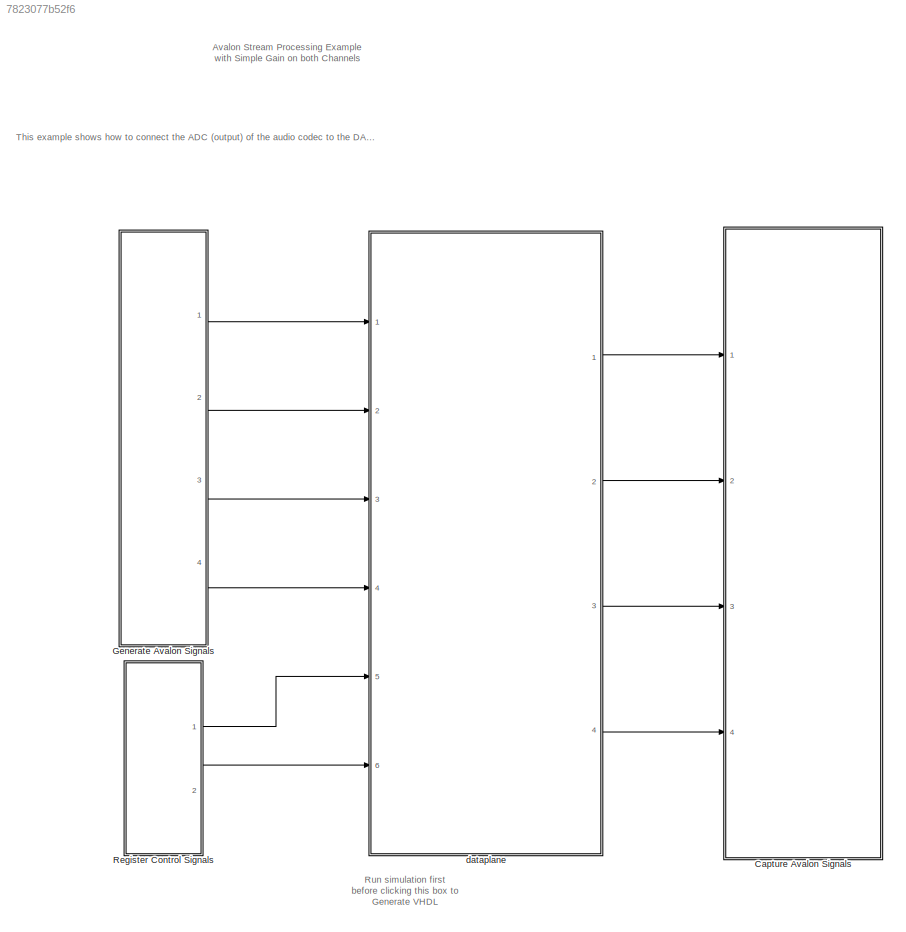
MODEL slx_7823077b52f6
KIND model
CONFIG AbsTol = auto
CONFIG EnableMultiTasking = off
CONFIG FixedStep = auto
CONFIG InitFcn = initCallback
CONFIG MaxStep = auto
CONFIG MinStep = auto
CONFIG RelTol = 1e-3
CONFIG SampleTimeConstraint = Unconstrained
CONFIG SolverName = FixedStepDiscrete
CONFIG StartTime = 0.0
CONFIG StopFcn = stopCallback
CONFIG StopTime = stopTime
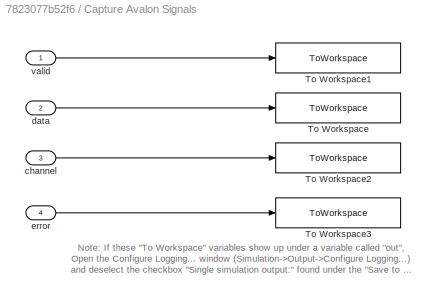
BLOCK [SubSystem] Capture Avalon Signals
  Ports = [4]
  RequestExecContextInheritance = off
BLOCK [ToWorkspace] Capture Avalon Signals/To Workspace
  FixptAsFi = on
  MaxDataPoints = inf
  Ports = [1]
  SampleTime = -1
  SaveFormat = Timeseries
  VariableName = Avalon_Sink_Data
BLOCK [ToWorkspace] Capture Avalon Signals/To Workspace1
  FixptAsFi = on
  MaxDataPoints = inf
  Ports = [1]
  SampleTime = -1
  SaveFormat = Timeseries
  VariableName = Avalon_Sink_Valid
BLOCK [ToWorkspace] Capture Avalon Signals/To Workspace2
  FixptAsFi = on
  MaxDataPoints = inf
  Ports = [1]
  SampleTime = -1
  SaveFormat = Timeseries
  VariableName = Avalon_Sink_Channel
BLOCK [ToWorkspace] Capture Avalon Signals/To Workspace3
  FixptAsFi = on
  MaxDataPoints = inf
  Ports = [1]
  SampleTime = -1
  SaveFormat = Timeseries
  VariableName = Avalon_Sink_Error
BLOCK [Inport] Capture Avalon Signals/channel
  Port = 3
BLOCK [Inport] Capture Avalon Signals/data
  Port = 2
BLOCK [Inport] Capture Avalon Signals/error
  Port = 4
BLOCK [Inport] Capture Avalon Signals/valid
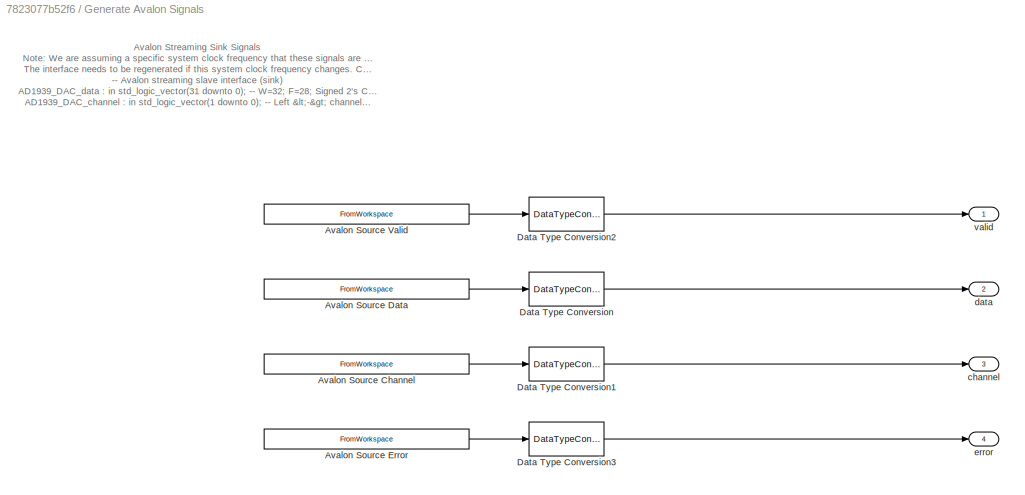
BLOCK [SubSystem] Generate Avalon Signals
  Ports = [0, 4]
  RequestExecContextInheritance = off
BLOCK [FromWorkspace] Generate Avalon Signals/Avalon Source Channel
  OutDataTypeStr = double
  SampleTime = mp.Ts_sim
  VariableName = mp.Avalon_Source_Channel
BLOCK [FromWorkspace] Generate Avalon Signals/Avalon Source Data 
  OutDataTypeStr = double
  SampleTime = mp.Ts_sim
  VariableName = mp.Avalon_Source_Data
BLOCK [FromWorkspace] Generate Avalon Signals/Avalon Source Error
  OutDataTypeStr = double
  SampleTime = mp.Ts_sim
  VariableName = mp.Avalon_Source_Error
BLOCK [FromWorkspace] Generate Avalon Signals/Avalon Source Valid
  OutDataTypeStr = double
  SampleTime = mp.Ts_sim
  VariableName = mp.Avalon_Source_Valid
BLOCK [DataTypeConversion] Generate Avalon Signals/Data Type Conversion
  OutDataTypeStr = fixdt(1,mp.W_bits,mp.F_bits)
  RndMeth = Floor
  SaturateOnIntegerOverflow = off
BLOCK [DataTypeConversion] Generate Avalon Signals/Data Type Conversion1
  OutDataTypeStr = fixdt(0,1,0)
  RndMeth = Floor
  SaturateOnIntegerOverflow = off
BLOCK [DataTypeConversion] Generate Avalon Signals/Data Type Conversion2
  OutDataTypeStr = boolean
  RndMeth = Floor
  SaturateOnIntegerOverflow = off
BLOCK [DataTypeConversion] Generate Avalon Signals/Data Type Conversion3
  OutDataTypeStr = fixdt(0,2,0)
  RndMeth = Floor
  SaturateOnIntegerOverflow = off
BLOCK [Outport] Generate Avalon Signals/channel
  Port = 3
  VectorParamsAs1DForOutWhenUnconnected = off
BLOCK [Outport] Generate Avalon Signals/data
  Port = 2
  VectorParamsAs1DForOutWhenUnconnected = off
BLOCK [Outport] Generate Avalon Signals/error
  Port = 4
  VectorParamsAs1DForOutWhenUnconnected = off
BLOCK [Outport] Generate Avalon Signals/valid
  VectorParamsAs1DForOutWhenUnconnected = off
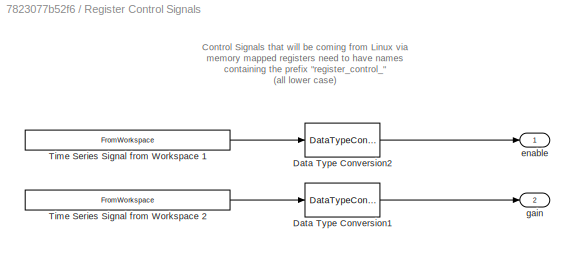
BLOCK [SubSystem] Register Control Signals
  Ports = [0, 2]
  RequestExecContextInheritance = off
BLOCK [DataTypeConversion] Register Control Signals/Data Type Conversion1
  OutDataTypeStr = mp.register{2}.dataType
  RndMeth = Floor
  SaturateOnIntegerOverflow = off
BLOCK [DataTypeConversion] Register Control Signals/Data Type Conversion2
  OutDataTypeStr = mp.register{1}.dataType
  RndMeth = Floor
  SaturateOnIntegerOverflow = off
BLOCK [FromWorkspace] Register Control Signals/Time Series Signal from Workspace 1
  OutDataTypeStr = double
  SampleTime = mp.Ts_sim
  VariableName = mp.register{1}.timeseries
BLOCK [FromWorkspace] Register Control Signals/Time Series Signal from Workspace 2
  OutDataTypeStr = double
  SampleTime = mp.Ts_sim
  VariableName = mp.register{2}.timeseries
BLOCK [Outport] Register Control Signals/enable
  VectorParamsAs1DForOutWhenUnconnected = off
BLOCK [Outport] Register Control Signals/gain
  Port = 2
  VectorParamsAs1DForOutWhenUnconnected = off
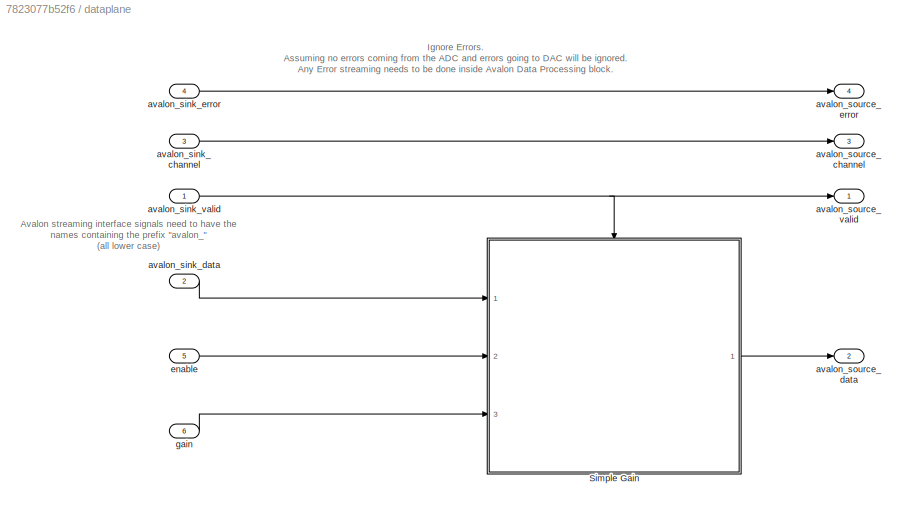
BLOCK [SubSystem] dataplane
  Ports = [6, 4]
  RequestExecContextInheritance = off
  TreatAsAtomicUnit = on
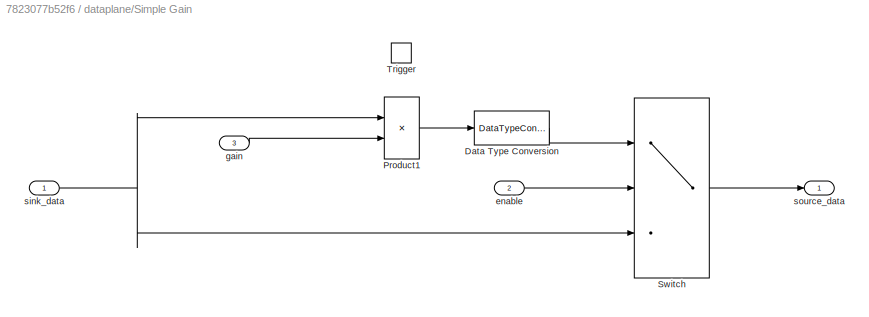
BLOCK [SubSystem] dataplane/Simple Gain
  Ports = [3, 1, 0, 1]
  RequestExecContextInheritance = off
  TreatAsAtomicUnit = on
BLOCK [DataTypeConversion] dataplane/Simple Gain/Data Type Conversion
  OutDataTypeStr = fixdt(1,24,23)
  RndMeth = Floor
  SaturateOnIntegerOverflow = off
BLOCK [Product] dataplane/Simple Gain/Product1
  Ports = [2, 1]
BLOCK [Switch] dataplane/Simple Gain/Switch
  Criteria = u2 ~= 0
  InputSameDT = off
  SaturateOnIntegerOverflow = off
BLOCK [TriggerPort] dataplane/Simple Gain/Trigger
  PortDimensions = 1
  Ports = []
  StatesWhenEnabling = held
  VariantControl = Variant
BLOCK [Inport] dataplane/Simple Gain/enable
  Port = 2
BLOCK [Inport] dataplane/Simple Gain/gain
  Port = 3
BLOCK [Inport] dataplane/Simple Gain/sink_data
BLOCK [Outport] dataplane/Simple Gain/source_data
  InitialOutput = 0
  VectorParamsAs1DForOutWhenUnconnected = off
BLOCK [Inport] dataplane/avalon_sink_channel
  Port = 3
BLOCK [Inport] dataplane/avalon_sink_data
  Port = 2
BLOCK [Inport] dataplane/avalon_sink_error
  Port = 4
BLOCK [Inport] dataplane/avalon_sink_valid
BLOCK [Outport] dataplane/avalon_source_channel
  Port = 3
  VectorParamsAs1DForOutWhenUnconnected = off
BLOCK [Outport] dataplane/avalon_source_data
  Port = 2
  VectorParamsAs1DForOutWhenUnconnected = off
BLOCK [Outport] dataplane/avalon_source_error
  Port = 4
  VectorParamsAs1DForOutWhenUnconnected = off
BLOCK [Outport] dataplane/avalon_source_valid
  VectorParamsAs1DForOutWhenUnconnected = off
BLOCK [Inport] dataplane/enable
  Port = 5
BLOCK [Inport] dataplane/gain
  Port = 6
ANNOTATION (root): Avalon Stream Processing Example with Simple Gain on both Channels
ANNOTATION (root): Run simulation first before clicking this box to Generate VHDL
ANNOTATION (root): This example shows how to connect the ADC (output) of the audio codec to the DAC (input) of the audio codec (AD1939). Audio data is just passed through with a single gain applied to the left and right channels. Data is streamed in the data plane using the Avalon Streaming interface that uses the data-channel-valid protocol.
ANNOTATION Capture Avalon Signals: Note: If these "To Workspace" variables show up under a variable called "out", Open the Configure Logging... window (Simulation->Output->Configure Logging...) and deselect the checkbox "Single simulation output:" found under the "Save to workspace or file" section.
ANNOTATION Generate Avalon Signals: Avalon Streaming Sink Signals Note: We are assuming a specific system clock frequency that these signals are being clock in at. The interface needs to be regenerated if this system clock frequency changes. Change system clock frequency in InitFcn callback in Model Explorer. -- Avalon streaming slave interface (sink) AD1939_DAC_data : in std_logic_vector(31 downto 0); -- W=32; F=28; Signed 2's Comp...<+545ch>
ANNOTATION Register Control Signals: Control Signals that will be coming from Linux via memory mapped registers need to have names containing the prefix "register_control_" (all lower case)
ANNOTATION dataplane: Avalon streaming interface signals need to have the names containing the prefix "avalon_" (all lower case)
ANNOTATION dataplane: Ignore Errors. Assuming no errors coming from the ADC and errors going to DAC will be ignored. Any Error streaming needs to be done inside Avalon Data Processing block.
LINE Capture Avalon Signals/channel:1 -> Capture Avalon Signals/To Workspace2:1
LINE Capture Avalon Signals/data:1 -> Capture Avalon Signals/To Workspace:1
LINE Capture Avalon Signals/error:1 -> Capture Avalon Signals/To Workspace3:1
LINE Capture Avalon Signals/valid:1 -> Capture Avalon Signals/To Workspace1:1
LINE Generate Avalon Signals/Avalon Source Channel:1 -> Generate Avalon Signals/Data Type Conversion1:1
LINE Generate Avalon Signals/Avalon Source Data :1 -> Generate Avalon Signals/Data Type Conversion:1
LINE Generate Avalon Signals/Avalon Source Error:1 -> Generate Avalon Signals/Data Type Conversion3:1
LINE Generate Avalon Signals/Avalon Source Valid:1 -> Generate Avalon Signals/Data Type Conversion2:1
LINE Generate Avalon Signals/Data Type Conversion1:1 -> Generate Avalon Signals/channel:1
LINE Generate Avalon Signals/Data Type Conversion2:1 -> Generate Avalon Signals/valid:1
LINE Generate Avalon Signals/Data Type Conversion3:1 -> Generate Avalon Signals/error:1
LINE Generate Avalon Signals/Data Type Conversion:1 -> Generate Avalon Signals/data:1
LINE Generate Avalon Signals:1 -> dataplane:1
LINE Generate Avalon Signals:2 -> dataplane:2
LINE Generate Avalon Signals:3 -> dataplane:3
LINE Generate Avalon Signals:4 -> dataplane:4
LINE Register Control Signals/Data Type Conversion1:1 -> Register Control Signals/gain:1
LINE Register Control Signals/Data Type Conversion2:1 -> Register Control Signals/enable:1
LINE Register Control Signals/Time Series Signal from Workspace 1:1 -> Register Control Signals/Data Type Conversion2:1
LINE Register Control Signals/Time Series Signal from Workspace 2:1 -> Register Control Signals/Data Type Conversion1:1
LINE Register Control Signals:1 -> dataplane:5
LINE Register Control Signals:2 -> dataplane:6
LINE dataplane/Simple Gain/Data Type Conversion:1 -> dataplane/Simple Gain/Switch:1
LINE dataplane/Simple Gain/Product1:1 -> dataplane/Simple Gain/Data Type Conversion:1
LINE dataplane/Simple Gain/Switch:1 -> dataplane/Simple Gain/source_data:1
LINE dataplane/Simple Gain/enable:1 -> dataplane/Simple Gain/Switch:2
LINE dataplane/Simple Gain/gain:1 -> dataplane/Simple Gain/Product1:2
NET dataplane/Simple Gain/sink_data:1 -> dataplane/Simple Gain/Product1:1, dataplane/Simple Gain/Switch:3
LINE dataplane/Simple Gain:1 -> dataplane/avalon_source_data:1
LINE dataplane/avalon_sink_channel:1 -> dataplane/avalon_source_channel:1
LINE dataplane/avalon_sink_data:1 -> dataplane/Simple Gain:1
LINE dataplane/avalon_sink_error:1 -> dataplane/avalon_source_error:1
NET dataplane/avalon_sink_valid:1 -> dataplane/Simple Gain:trigger, dataplane/avalon_source_valid:1
LINE dataplane/enable:1 -> dataplane/Simple Gain:2
LINE dataplane/gain:1 -> dataplane/Simple Gain:3
LINE dataplane:1 -> Capture Avalon Signals:1
LINE dataplane:2 -> Capture Avalon Signals:2
LINE dataplane:3 -> Capture Avalon Signals:3
LINE dataplane:4 -> Capture Avalon Signals:4
note: NET lines group one-source signal fan-out (src -> all destinations, sorted); 1:1 wires keep LINE
